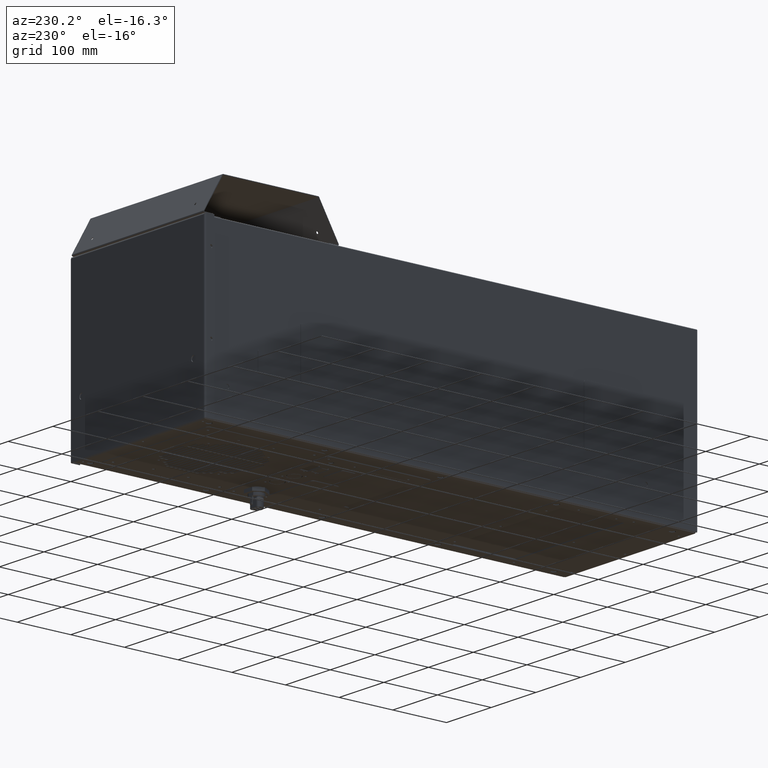
[diagram: clean part render]
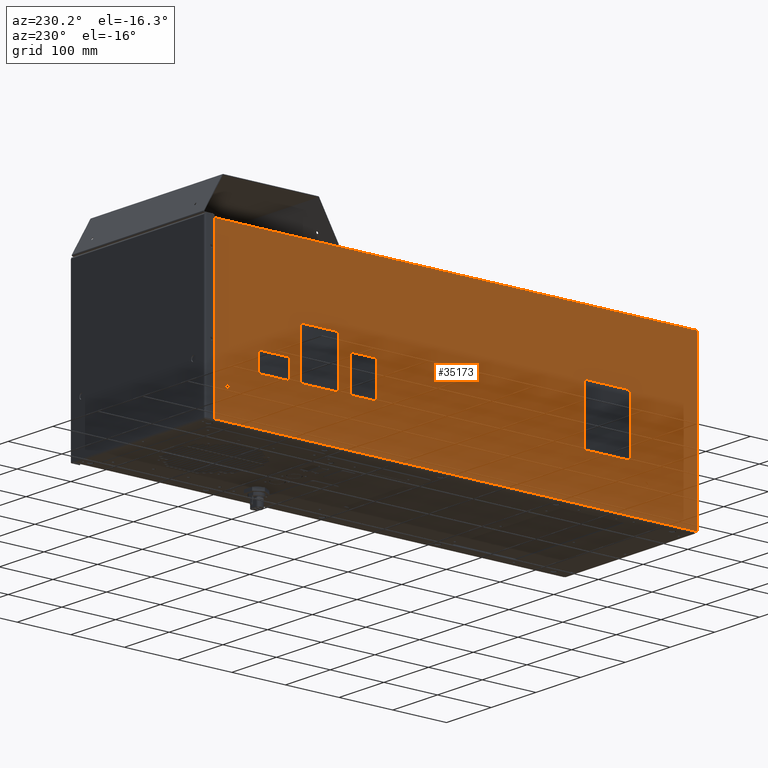
[diagram: same view with one face highlighted and labeled with its STEP entity id]
A machine part, auxiliary view. The second image highlights one B-rep face of the part: STEP entity #35173.
In plain terms, the highlighted planar face has unit normal (1, -0, -0).
Its self-contained STEP definition (entity closure, byte-faithful):
#846 = ORIENTED_EDGE ( 'NONE', *, *, #44221, .T. ) ;
#905 = DIRECTION ( 'NONE',  ( 0.000000000000000000, 1.091729334712354840E-05, 0.9999999999404063367 ) ) ;
#1135 = ORIENTED_EDGE ( 'NONE', *, *, #20481, .F. ) ;
#1191 = VERTEX_POINT ( 'NONE', #48896 ) ;
#1283 = EDGE_CURVE ( 'NONE', #38579, #62242, #36460, .T. ) ;
#1445 = EDGE_CURVE ( 'NONE', #40721, #52219, #38011, .T. ) ;
#1522 = DIRECTION ( 'NONE',  ( -1.341776734808250407E-29, 0.9999999999404064477, -1.091729334800000389E-05 ) ) ;
#1841 = LINE ( 'NONE', #25763, #17623 ) ;
#1954 = CARTESIAN_POINT ( 'NONE',  ( -5.875984251968503713, 17.37624155420484229, 5.909339826385060057 ) ) ;
#2073 = FACE_OUTER_BOUND ( 'NONE', #61629, .T. ) ;
#2214 = VECTOR ( 'NONE', #62689, 39.37007874015748143 ) ;
#2369 = CIRCLE ( 'NONE', #34964, 0.07874015748031494566 ) ;
#2562 = ORIENTED_EDGE ( 'NONE', *, *, #21139, .F. ) ;
#2566 = LINE ( 'NONE', #22328, #58836 ) ;
#2604 = DIRECTION ( 'NONE',  ( 0.000000000000000000, 1.091729335505384863E-05, 0.9999999999404064477 ) ) ;
#2942 = CARTESIAN_POINT ( 'NONE',  ( -5.875984251968503713, 16.37618841880679454, -3.827641382306020024 ) ) ;
#3503 = DIRECTION ( 'NONE',  ( -1.000000000000000000, -9.912809571418970026E-30, 1.082210499918042052E-34 ) ) ;
#3878 = CIRCLE ( 'NONE', #59927, 0.07874015748031494566 ) ;
#4077 = EDGE_CURVE ( 'NONE', #11238, #27381, #53264, .T. ) ;
#4154 = EDGE_CURVE ( 'NONE', #31732, #52991, #57587, .T. ) ;
#4505 = CARTESIAN_POINT ( 'NONE',  ( -5.875984251968503713, 11.84859787558988309, -2.563198210821720835 ) ) ;
#4659 = DIRECTION ( 'NONE',  ( 1.341776734808250407E-29, -0.9999999999404064477, 1.091729334800000389E-05 ) ) ;
#4706 = EDGE_CURVE ( 'NONE', #50708, #26687, #44435, .T. ) ;
#4708 = DIRECTION ( 'NONE',  ( 0.000000000000000000, 1.091729335505389268E-05, 0.9999999999404064477 ) ) ;
#4946 = CARTESIAN_POINT ( 'NONE',  ( -5.875984251968503713, -14.33247149233454643, -3.689510851258665625 ) ) ;
#5050 = VERTEX_POINT ( 'NONE', #60593 ) ;
#5164 = CARTESIAN_POINT ( 'NONE',  ( -5.875984251968503713, -12.97164325375132066, 1.492190869444267820 ) ) ;
#5690 = VERTEX_POINT ( 'NONE', #57851 ) ;
#5982 = CARTESIAN_POINT ( 'NONE',  ( -5.875984251968550787, 5.521212100022543368, -2.563129132960370260 ) ) ;
#6079 = EDGE_CURVE ( 'NONE', #11481, #47968, #16806, .T. ) ;
#6359 = VERTEX_POINT ( 'NONE', #7056 ) ;
#6430 = AXIS2_PLACEMENT_3D ( 'NONE', #8876, #34070, #9506 ) ;
#6549 = FACE_BOUND ( 'NONE', #28842, .T. ) ;
#6569 = AXIS2_PLACEMENT_3D ( 'NONE', #9178, #14281, #4708 ) ;
#6607 = EDGE_CURVE ( 'NONE', #28282, #5690, #18615, .T. ) ;
#7056 = CARTESIAN_POINT ( 'NONE',  ( -5.875984251968503713, 16.37618691445533514, -3.965436657888362415 ) ) ;
#7084 = CARTESIAN_POINT ( 'NONE',  ( -5.875984251968503713, 16.37618841880679454, -3.827641382306020024 ) ) ;
#7170 = FACE_BOUND ( 'NONE', #27527, .T. ) ;
#7980 = LINE ( 'NONE', #11829, #34679 ) ;
#8044 = EDGE_CURVE ( 'NONE', #25978, #22851, #13866, .T. ) ;
#8302 = VERTEX_POINT ( 'NONE', #40921 ) ;
#8373 = CARTESIAN_POINT ( 'NONE',  ( -5.875984251968503713, 11.00858410332041437, -2.563189040210240410 ) ) ;
#8396 = VECTOR ( 'NONE', #57745, 39.37007874015748143 ) ;
#8597 = CARTESIAN_POINT ( 'NONE',  ( -5.875984251968503713, 11.84859787558988309, -2.563198210821720835 ) ) ;
#8876 = CARTESIAN_POINT ( 'NONE',  ( -5.875984251968550787, 10.92984394584478380, -2.563188180580842079 ) ) ;
#8969 = EDGE_CURVE ( 'NONE', #45602, #55176, #52077, .T. ) ;
#8999 = DIRECTION ( 'NONE',  ( -1.341776734808250407E-29, 0.9999999999404064477, -1.091729334800000389E-05 ) ) ;
#9178 = CARTESIAN_POINT ( 'NONE',  ( -5.875984251968503713, -14.33247299668600405, -3.827306126841004019 ) ) ;
#9506 = DIRECTION ( 'NONE',  ( 0.000000000000000000, -1.091729334712358567E-05, -0.9999999999404063367 ) ) ;
#9843 = DIRECTION ( 'NONE',  ( 0.000000000000000000, 1.091729334712358567E-05, 0.9999999999404063367 ) ) ;
#10009 = VECTOR ( 'NONE', #40531, 39.37007874015748143 ) ;
#10315 = DIRECTION ( 'NONE',  ( 0.000000000000000000, -1.091729334712358567E-05, -0.9999999999404063367 ) ) ;
#10539 = CARTESIAN_POINT ( 'NONE',  ( -5.875984251968503713, -9.979517269677657509, 1.492158203527163440 ) ) ;
#11135 = EDGE_CURVE ( 'NONE', #56935, #8302, #18461, .T. ) ;
#11217 = CARTESIAN_POINT ( 'NONE',  ( -5.875984251968503713, -14.33247450103744036, -3.965101402423345966 ) ) ;
#11238 = VERTEX_POINT ( 'NONE', #4946 ) ;
#11321 = FACE_BOUND ( 'NONE', #52156, .T. ) ;
#11338 = DIRECTION ( 'NONE',  ( 9.999999999999754258E-16, 0.9999999999404064477, -1.091729334400000430E-05 ) ) ;
#11481 = VERTEX_POINT ( 'NONE', #61868 ) ;
#11720 = EDGE_LOOP ( 'NONE', ( #33265, #38617 ) ) ;
#11827 = EDGE_CURVE ( 'NONE', #12172, #40721, #56551, .T. ) ;
#11829 = CARTESIAN_POINT ( 'NONE',  ( -5.875984251968503713, -18.09632885416606385, -5.949036689392244170 ) ) ;
#11953 = PLANE ( 'NONE',  #58436 ) ;
#11961 = ORIENTED_EDGE ( 'NONE', *, *, #11135, .F. ) ;
#12172 = VERTEX_POINT ( 'NONE', #25751 ) ;
#12203 = ORIENTED_EDGE ( 'NONE', *, *, #47808, .F. ) ;
#12264 = DIRECTION ( 'NONE',  ( -3.491469273482965304E-15, 0.000000000000000000, -1.000000000000000000 ) ) ;
#12265 = EDGE_LOOP ( 'NONE', ( #13740, #1135, #21568, #44689, #37765, #25754, #58540, #58934 ) ) ;
#12326 = CARTESIAN_POINT ( 'NONE',  ( -5.875984251968503713, 7.332235721961870567, -2.563148904436511888 ) ) ;
#13147 = LINE ( 'NONE', #61280, #44562 ) ;
#13172 = ORIENTED_EDGE ( 'NONE', *, *, #17903, .F. ) ;
#13319 = ORIENTED_EDGE ( 'NONE', *, *, #56834, .F. ) ;
#13417 = ORIENTED_EDGE ( 'NONE', *, *, #4154, .F. ) ;
#13740 = ORIENTED_EDGE ( 'NONE', *, *, #55760, .F. ) ;
#13866 = LINE ( 'NONE', #33633, #60152 ) ;
#13889 = CARTESIAN_POINT ( 'NONE',  ( -5.875984251968503713, -9.979519418751161552, 1.295307809838108337 ) ) ;
#14109 = CARTESIAN_POINT ( 'NONE',  ( -5.875984251968550787, -9.782709857458485203, -2.444851819327456433 ) ) ;
#14138 = ORIENTED_EDGE ( 'NONE', *, *, #42916, .T. ) ;
#14253 = DIRECTION ( 'NONE',  ( 0.000000000000000000, -1.091729334712354840E-05, -0.9999999999404063367 ) ) ;
#14281 = DIRECTION ( 'NONE',  ( -1.000000000000000000, -3.275188005545924834E-20, 3.575618825162955162E-25 ) ) ;
#14303 = VERTEX_POINT ( 'NONE', #29981 ) ;
#14555 = DIRECTION ( 'NONE',  ( -1.000000000000000000, -3.275188005545924834E-20, 3.575618825162955162E-25 ) ) ;
#14795 = ORIENTED_EDGE ( 'NONE', *, *, #31988, .F. ) ;
#15004 = DIRECTION ( 'NONE',  ( -1.000000000000000000, 9.999999999403799426E-16, -1.091729334712330157E-20 ) ) ;
#15226 = EDGE_CURVE ( 'NONE', #45019, #6359, #31713, .T. ) ;
#15378 = ORIENTED_EDGE ( 'NONE', *, *, #60689, .F. ) ;
#15449 = DIRECTION ( 'NONE',  ( 1.000000000000000000, 9.912821608481119643E-30, -1.082211814039427982E-34 ) ) ;
#15876 = DIRECTION ( 'NONE',  ( 1.000000000000000000, 9.912947997633720056E-30, -1.082225612313979920E-34 ) ) ;
#16086 = CIRCLE ( 'NONE', #59848, 0.07874015748031491790 ) ;
#16089 = EDGE_CURVE ( 'NONE', #8302, #26046, #62861, .T. ) ;
#16192 = VERTEX_POINT ( 'NONE', #30660 ) ;
#16302 = CARTESIAN_POINT ( 'NONE',  ( -5.875984251968503713, 8.331455713213326675, 0.8226669586410453316 ) ) ;
#16447 = DIRECTION ( 'NONE',  ( 3.999045851678141563E-15, 1.091729334800000389E-05, 0.9999999999404064477 ) ) ;
#16806 = CIRCLE ( 'NONE', #24942, 0.07874015748031494566 ) ;
#16894 = DIRECTION ( 'NONE',  ( -1.000000000000000000, 9.999999999403799426E-16, -1.091729334712330157E-20 ) ) ;
#17171 = CARTESIAN_POINT ( 'NONE',  ( -5.875984251968503713, 14.13206244238293507, -2.563223140074240014 ) ) ;
#17623 = VECTOR ( 'NONE', #1522, 39.37007874015748143 ) ;
#17635 = VERTEX_POINT ( 'NONE', #20389 ) ;
#17895 = AXIS2_PLACEMENT_3D ( 'NONE', #27089, #16894, #31558 ) ;
#17903 = EDGE_CURVE ( 'NONE', #26046, #54696, #39338, .T. ) ;
#18461 = CIRCLE ( 'NONE', #54075, 0.1968503937007872462 ) ;
#18615 = CIRCLE ( 'NONE', #60330, 0.1968503937007872462 ) ;
#18640 = CARTESIAN_POINT ( 'NONE',  ( -5.875984251968503713, -12.97164540282480516, 1.295340475755212495 ) ) ;
#18666 = AXIS2_PLACEMENT_3D ( 'NONE', #33390, #14555, #63004 ) ;
#18822 = DIRECTION ( 'NONE',  ( -5.551115123125787435E-15, -1.091729334712355687E-05, -0.9999999999404063367 ) ) ;
#18890 = CARTESIAN_POINT ( 'NONE',  ( -5.875984251968503713, 8.331456572842716568, 0.9014071161166673507 ) ) ;
#19153 = EDGE_CURVE ( 'NONE', #27381, #11238, #34071, .T. ) ;
#19357 = DIRECTION ( 'NONE',  ( 1.000000000000000000, 9.912809571418970026E-30, -1.082210499918042052E-34 ) ) ;
#20040 = CARTESIAN_POINT ( 'NONE',  ( -5.875984251968503713, 8.252715555737696107, 0.8226678182704428854 ) ) ;
#20389 = CARTESIAN_POINT ( 'NONE',  ( -5.875984251968503713, 8.331456572842716568, 0.9014071161166673507 ) ) ;
#20481 = EDGE_CURVE ( 'NONE', #47968, #31270, #58532, .T. ) ;
#20564 = AXIS2_PLACEMENT_3D ( 'NONE', #61838, #3503, #38261 ) ;
#20908 = ORIENTED_EDGE ( 'NONE', *, *, #38230, .F. ) ;
#21081 = CARTESIAN_POINT ( 'NONE',  ( -5.875984251968550787, 8.252678591673621611, -2.563158953181326805 ) ) ;
#21139 = EDGE_CURVE ( 'NONE', #6359, #45019, #33844, .T. ) ;
#21200 = EDGE_CURVE ( 'NONE', #45173, #34353, #33225, .T. ) ;
#21529 = FACE_BOUND ( 'NONE', #42689, .T. ) ;
#21568 = ORIENTED_EDGE ( 'NONE', *, *, #6079, .F. ) ;
#21685 = CIRCLE ( 'NONE', #26791, 0.07874015748031494566 ) ;
#21788 = CARTESIAN_POINT ( 'NONE',  ( -5.875984251968503713, -18.09619938856315002, 5.909727089428622904 ) ) ;
#21869 = CARTESIAN_POINT ( 'NONE',  ( -5.875984251968558780, 10.92984308621537615, -2.641928338056464654 ) ) ;
#22207 = CARTESIAN_POINT ( 'NONE',  ( -5.875984251968558780, -9.979562400221023921, -2.641700063943019483 ) ) ;
#22328 = CARTESIAN_POINT ( 'NONE',  ( -5.875984251968503713, 11.92733717343610245, -2.641939227926740408 ) ) ;
#22629 = EDGE_CURVE ( 'NONE', #35243, #62242, #7980, .T. ) ;
#22694 = VECTOR ( 'NONE', #4659, 39.37007874015748143 ) ;
#22851 = VERTEX_POINT ( 'NONE', #57995 ) ;
#23139 = DIRECTION ( 'NONE',  ( -1.000000000000000000, 6.060315219290530207E-20, 5.551115122794980192E-15 ) ) ;
#23451 = DIRECTION ( 'NONE',  ( 5.551115123125787435E-15, 1.091729334712355687E-05, 0.9999999999404063367 ) ) ;
#23522 = ORIENTED_EDGE ( 'NONE', *, *, #4706, .F. ) ;
#23582 = DIRECTION ( 'NONE',  ( -1.000000000000000000, 6.060315219290530207E-20, 5.551115122794980192E-15 ) ) ;
#23806 = VECTOR ( 'NONE', #55394, 39.37007874015748143 ) ;
#24264 = CARTESIAN_POINT ( 'NONE',  ( -5.875984251968558780, -12.97168838429468352, -2.641667398025913549 ) ) ;
#24287 = ORIENTED_EDGE ( 'NONE', *, *, #44499, .F. ) ;
#24612 = EDGE_CURVE ( 'NONE', #1191, #38579, #26228, .T. ) ;
#24690 = ORIENTED_EDGE ( 'NONE', *, *, #27785, .F. ) ;
#24838 = CIRCLE ( 'NONE', #41144, 0.1968503937007872462 ) ;
#24942 = AXIS2_PLACEMENT_3D ( 'NONE', #34184, #33563, #47891 ) ;
#25318 = DIRECTION ( 'NONE',  ( -3.999045851678141563E-15, -1.091729334800000389E-05, -0.9999999999404064477 ) ) ;
#25751 = CARTESIAN_POINT ( 'NONE',  ( -5.875984251968503713, 11.92733717343610245, -2.641939227926740408 ) ) ;
#25754 = ORIENTED_EDGE ( 'NONE', *, *, #1445, .F. ) ;
#25763 = CARTESIAN_POINT ( 'NONE',  ( -5.875984251968503713, 5.442498591058243740, -0.1221833915866732262 ) ) ;
#25771 = CARTESIAN_POINT ( 'NONE',  ( -5.875984251968503713, -12.97164325375132066, 1.492190869444267820 ) ) ;
#25972 = CARTESIAN_POINT ( 'NONE',  ( -5.875984251968503713, 7.253521353368169500, -0.2009433205384377752 ) ) ;
#25978 = VERTEX_POINT ( 'NONE', #47307 ) ;
#26046 = VERTEX_POINT ( 'NONE', #58112 ) ;
#26228 = LINE ( 'NONE', #55528, #49620 ) ;
#26279 = VERTEX_POINT ( 'NONE', #46831 ) ;
#26451 = EDGE_CURVE ( 'NONE', #29738, #31732, #33984, .T. ) ;
#26520 = VECTOR ( 'NONE', #50467, 39.37007874015748143 ) ;
#26687 = VERTEX_POINT ( 'NONE', #12326 ) ;
#26791 = AXIS2_PLACEMENT_3D ( 'NONE', #34346, #19357, #14253 ) ;
#26842 = ORIENTED_EDGE ( 'NONE', *, *, #24612, .F. ) ;
#27089 = CARTESIAN_POINT ( 'NONE',  ( -5.875984251968503713, 11.92733803306549412, -2.563199070451117834 ) ) ;
#27262 = CARTESIAN_POINT ( 'NONE',  ( -5.875984251968503713, -18.09632885416606385, -5.949036689392244170 ) ) ;
#27381 = VERTEX_POINT ( 'NONE', #11217 ) ;
#27442 = DIRECTION ( 'NONE',  ( 3.491469273333476951E-15, 1.091729334800000389E-05, 0.9999999999404064477 ) ) ;
#27527 = EDGE_LOOP ( 'NONE', ( #52938, #2562 ) ) ;
#27785 = EDGE_CURVE ( 'NONE', #52991, #48541, #28818, .T. ) ;
#27822 = ORIENTED_EDGE ( 'NONE', *, *, #43655, .F. ) ;
#28065 = EDGE_CURVE ( 'NONE', #16192, #11481, #59161, .T. ) ;
#28259 = ORIENTED_EDGE ( 'NONE', *, *, #26451, .F. ) ;
#28282 = VERTEX_POINT ( 'NONE', #50546 ) ;
#28416 = DIRECTION ( 'NONE',  ( 0.000000000000000000, -1.091729334712358567E-05, -0.9999999999404063367 ) ) ;
#28732 = VECTOR ( 'NONE', #33560, 39.37007874015748143 ) ;
#28818 = CIRCLE ( 'NONE', #57338, 0.07874015748031468198 ) ;
#28842 = EDGE_LOOP ( 'NONE', ( #14795, #46432, #20908, #46054, #24287, #24690, #13417, #28259 ) ) ;
#29243 = EDGE_CURVE ( 'NONE', #14303, #22851, #21685, .T. ) ;
#29738 = VERTEX_POINT ( 'NONE', #8373 ) ;
#29981 = CARTESIAN_POINT ( 'NONE',  ( -5.875984251968503713, 5.521238748533866314, -0.1221842512160702804 ) ) ;
#30219 = CIRCLE ( 'NONE', #59695, 0.07874015748031468198 ) ;
#30240 = LINE ( 'NONE', #25771, #23806 ) ;
#30245 = DIRECTION ( 'NONE',  ( -1.000000000000000000, 9.999999999403799426E-16, -1.091729334712326094E-20 ) ) ;
#30278 = AXIS2_PLACEMENT_3D ( 'NONE', #34252, #53985, #10315 ) ;
#30385 = DIRECTION ( 'NONE',  ( -9.541485006438173917E-19, 1.091729334795450467E-05, 0.9999999999404064477 ) ) ;
#30429 = DIRECTION ( 'NONE',  ( -3.999045851678141563E-15, -1.091729334800000389E-05, -0.9999999999404064477 ) ) ;
#30460 = VECTOR ( 'NONE', #8999, 39.37007874015748143 ) ;
#30497 = CARTESIAN_POINT ( 'NONE',  ( -5.875984251968503713, 11.92735221695055081, -1.263986472103346470 ) ) ;
#30660 = CARTESIAN_POINT ( 'NONE',  ( -5.875984251968503713, 11.92735221695055081, -1.263986472103346470 ) ) ;
#30772 = ORIENTED_EDGE ( 'NONE', *, *, #44009, .T. ) ;
#31270 = VERTEX_POINT ( 'NONE', #17171 ) ;
#31558 = DIRECTION ( 'NONE',  ( 0.000000000000000000, 1.091729334712358567E-05, 0.9999999999404063367 ) ) ;
#31713 = CIRCLE ( 'NONE', #54115, 0.1377952755905494375 ) ;
#31732 = VERTEX_POINT ( 'NONE', #21869 ) ;
#31924 = VECTOR ( 'NONE', #11338, 39.37007874015748143 ) ;
#31988 = EDGE_CURVE ( 'NONE', #55176, #29738, #40296, .T. ) ;
#31992 = DIRECTION ( 'NONE',  ( 3.275188005741776261E-20, -0.9999999999404064477, 1.091729334800000389E-05 ) ) ;
#32267 = ORIENTED_EDGE ( 'NONE', *, *, #56302, .T. ) ;
#32535 = DIRECTION ( 'NONE',  ( 0.000000000000000000, 1.091729334712354840E-05, 0.9999999999404063367 ) ) ;
#33225 = LINE ( 'NONE', #43726, #8396 ) ;
#33265 = ORIENTED_EDGE ( 'NONE', *, *, #4077, .F. ) ;
#33390 = CARTESIAN_POINT ( 'NONE',  ( -5.875984251968503713, -14.33247299668600405, -3.827306126841004019 ) ) ;
#33560 = DIRECTION ( 'NONE',  ( -3.999045851678141563E-15, -1.091729334800000389E-05, -0.9999999999404064477 ) ) ;
#33563 = DIRECTION ( 'NONE',  ( -1.000000000000000000, 9.999999999403799426E-16, -1.091729334712326094E-20 ) ) ;
#33633 = CARTESIAN_POINT ( 'NONE',  ( -5.875984251968558780, 5.442471082917520242, -2.641868430806594503 ) ) ;
#33844 = CIRCLE ( 'NONE', #52159, 0.1377952755905494375 ) ;
#33862 = CARTESIAN_POINT ( 'NONE',  ( -5.875984251968503713, 7.332261510843779639, -0.2009441801678350514 ) ) ;
#33940 = CARTESIAN_POINT ( 'NONE',  ( -5.875984251968503713, 14.13207576663858234, -1.342750699202088782 ) ) ;
#33984 = CIRCLE ( 'NONE', #6430, 0.07874015748031468198 ) ;
#34024 = CARTESIAN_POINT ( 'NONE',  ( -5.875984251968550787, 8.252678591673621611, -2.563158953181326805 ) ) ;
#34070 = DIRECTION ( 'NONE',  ( -1.000000000000000000, -9.912947997633720056E-30, 1.082225612313979920E-34 ) ) ;
#34071 = CIRCLE ( 'NONE', #6569, 0.1377952755905488824 ) ;
#34184 = CARTESIAN_POINT ( 'NONE',  ( -5.875984251968503713, 14.05333560916295355, -1.342749839572691117 ) ) ;
#34252 = CARTESIAN_POINT ( 'NONE',  ( -5.875984251968550787, 7.253495564486240887, -2.563148044807114445 ) ) ;
#34346 = CARTESIAN_POINT ( 'NONE',  ( -5.875984251968503713, 5.521237888904464874, -0.2009244086916929239 ) ) ;
#34353 = VERTEX_POINT ( 'NONE', #53399 ) ;
#34549 = ORIENTED_EDGE ( 'NONE', *, *, #16089, .F. ) ;
#34679 = VECTOR ( 'NONE', #27442, 39.37007874015748143 ) ;
#34964 = AXIS2_PLACEMENT_3D ( 'NONE', #49984, #30245, #905 ) ;
#35173 = ADVANCED_FACE ( 'NONE', ( #2073, #21529, #6549, #7170, #41299, #54992, #11321 ), #11953, .F. ) ;
#35243 = VERTEX_POINT ( 'NONE', #51161 ) ;
#35541 = CARTESIAN_POINT ( 'NONE',  ( -5.875984251968503713, 11.84861119984553213, -1.342725769949570935 ) ) ;
#35887 = DIRECTION ( 'NONE',  ( 1.000000000000000000, -5.365514217043970493E-21, -3.491469273482965304E-15 ) ) ;
#35977 = EDGE_CURVE ( 'NONE', #52219, #16192, #2369, .T. ) ;
#36460 = LINE ( 'NONE', #21788, #26520 ) ;
#36692 = DIRECTION ( 'NONE',  ( -9.999999999999754258E-16, -0.9999999999404064477, 1.091729334400000430E-05 ) ) ;
#37765 = ORIENTED_EDGE ( 'NONE', *, *, #35977, .F. ) ;
#38011 = LINE ( 'NONE', #4505, #62112 ) ;
#38230 = EDGE_CURVE ( 'NONE', #17635, #45602, #57450, .T. ) ;
#38261 = DIRECTION ( 'NONE',  ( 0.000000000000000000, -1.091729334712354840E-05, -0.9999999999404063367 ) ) ;
#38579 = VERTEX_POINT ( 'NONE', #1954 ) ;
#38617 = ORIENTED_EDGE ( 'NONE', *, *, #19153, .F. ) ;
#38869 = VECTOR ( 'NONE', #48801, 39.37007874015748143 ) ;
#39236 = CARTESIAN_POINT ( 'NONE',  ( -5.875984251968503713, 14.05332228490730451, -2.563222280444842571 ) ) ;
#39338 = CIRCLE ( 'NONE', #48479, 0.1968503937007872462 ) ;
#39652 = VERTEX_POINT ( 'NONE', #20040 ) ;
#40296 = LINE ( 'NONE', #59727, #52696 ) ;
#40531 = DIRECTION ( 'NONE',  ( 3.999045851678141563E-15, 1.091729334800000389E-05, 0.9999999999404064477 ) ) ;
#40721 = VERTEX_POINT ( 'NONE', #8597 ) ;
#40921 = CARTESIAN_POINT ( 'NONE',  ( -5.875984251968503713, -9.782669025062087798, 1.295305660764614286 ) ) ;
#40994 = CARTESIAN_POINT ( 'NONE',  ( -5.875984251968550787, -13.16853662891023724, -2.444814855263366393 ) ) ;
#41124 = ORIENTED_EDGE ( 'NONE', *, *, #59544, .F. ) ;
#41144 = AXIS2_PLACEMENT_3D ( 'NONE', #18640, #62611, #46996 ) ;
#41299 = FACE_BOUND ( 'NONE', #11720, .T. ) ;
#42056 = CARTESIAN_POINT ( 'NONE',  ( -5.875984251968503713, 14.05332142527791461, -2.641962437920465145 ) ) ;
#42667 = CARTESIAN_POINT ( 'NONE',  ( -5.875984251968550787, -9.979560251147539418, -2.444849670253964380 ) ) ;
#42689 = EDGE_LOOP ( 'NONE', ( #23522, #14138, #41124, #49662, #52468, #32267, #47604, #30772 ) ) ;
#42723 = CARTESIAN_POINT ( 'NONE',  ( -5.875984251968550787, -12.97168623522118125, -2.444817004336858446 ) ) ;
#42916 = EDGE_CURVE ( 'NONE', #50708, #26279, #16086, .T. ) ;
#43409 = DIRECTION ( 'NONE',  ( 9.990458516781393573E-16, 1.091729334400000430E-05, 0.9999999999404064477 ) ) ;
#43655 = EDGE_CURVE ( 'NONE', #5690, #5050, #45451, .T. ) ;
#43726 = CARTESIAN_POINT ( 'NONE',  ( -5.875984251968558780, 5.442471082917520242, -2.641868430806594503 ) ) ;
#44009 = EDGE_CURVE ( 'NONE', #45173, #26687, #44509, .T. ) ;
#44221 = EDGE_CURVE ( 'NONE', #1191, #35243, #13147, .T. ) ;
#44235 = CARTESIAN_POINT ( 'NONE',  ( -5.875984251968558780, 8.331417889519842745, -2.641899970286346822 ) ) ;
#44435 = LINE ( 'NONE', #49532, #45195 ) ;
#44499 = EDGE_CURVE ( 'NONE', #48541, #39652, #59646, .T. ) ;
#44509 = CIRCLE ( 'NONE', #30278, 0.07874015748031468198 ) ;
#44562 = VECTOR ( 'NONE', #31992, 39.37007874015748143 ) ;
#44675 = EDGE_CURVE ( 'NONE', #56046, #12172, #2566, .T. ) ;
#44689 = ORIENTED_EDGE ( 'NONE', *, *, #28065, .F. ) ;
#45019 = VERTEX_POINT ( 'NONE', #45235 ) ;
#45173 = VERTEX_POINT ( 'NONE', #52506 ) ;
#45195 = VECTOR ( 'NONE', #25318, 39.37007874015748143 ) ;
#45235 = CARTESIAN_POINT ( 'NONE',  ( -5.875984251968503713, 16.37618992315822908, -3.689846106723681185 ) ) ;
#45263 = ORIENTED_EDGE ( 'NONE', *, *, #6607, .F. ) ;
#45451 = LINE ( 'NONE', #40994, #49749 ) ;
#45602 = VERTEX_POINT ( 'NONE', #49159 ) ;
#45674 = DIRECTION ( 'NONE',  ( -1.000000000000000000, -3.275188005545924834E-20, 3.575618825162945520E-25 ) ) ;
#45996 = DIRECTION ( 'NONE',  ( -1.000000000000000000, -3.275188005545924834E-20, 3.575618825162945520E-25 ) ) ;
#46054 = ORIENTED_EDGE ( 'NONE', *, *, #51113, .F. ) ;
#46432 = ORIENTED_EDGE ( 'NONE', *, *, #8969, .F. ) ;
#46831 = CARTESIAN_POINT ( 'NONE',  ( -5.875984251968503713, 7.253522212997559393, -0.1222031630628155618 ) ) ;
#46996 = DIRECTION ( 'NONE',  ( 5.551115123125787435E-15, 1.091729334712355687E-05, 0.9999999999404063367 ) ) ;
#47307 = CARTESIAN_POINT ( 'NONE',  ( -5.875984251968503713, 5.442471942546921682, -2.563128273330972373 ) ) ;
#47542 = ORIENTED_EDGE ( 'NONE', *, *, #22629, .T. ) ;
#47604 = ORIENTED_EDGE ( 'NONE', *, *, #21200, .F. ) ;
#47762 = DIRECTION ( 'NONE',  ( 5.551115123125787435E-15, 1.091729334712355687E-05, 0.9999999999404063367 ) ) ;
#47808 = EDGE_CURVE ( 'NONE', #5050, #62879, #24838, .T. ) ;
#47891 = DIRECTION ( 'NONE',  ( 0.000000000000000000, 1.091729334712354840E-05, 0.9999999999404063367 ) ) ;
#47968 = VERTEX_POINT ( 'NONE', #33940 ) ;
#48479 = AXIS2_PLACEMENT_3D ( 'NONE', #42667, #62096, #47762 ) ;
#48541 = VERTEX_POINT ( 'NONE', #34024 ) ;
#48801 = DIRECTION ( 'NONE',  ( 1.341776734808250407E-29, -0.9999999999404064477, 1.091729334800000389E-05 ) ) ;
#48896 = CARTESIAN_POINT ( 'NONE',  ( -5.875984251968503713, 17.37611260171470562, -5.902423952438598853 ) ) ;
#49159 = CARTESIAN_POINT ( 'NONE',  ( -5.875984251968503713, 10.92988176953826773, 0.9013787483465512951 ) ) ;
#49532 = CARTESIAN_POINT ( 'NONE',  ( -5.875984251968558780, 7.332234862332460246, -2.641889061912134018 ) ) ;
#49620 = VECTOR ( 'NONE', #30385, 39.37007874015748143 ) ;
#49662 = ORIENTED_EDGE ( 'NONE', *, *, #29243, .T. ) ;
#49749 = VECTOR ( 'NONE', #16447, 39.37007874015748143 ) ;
#49984 = CARTESIAN_POINT ( 'NONE',  ( -5.875984251968503713, 11.92735135732116269, -1.342726629578968600 ) ) ;
#50179 = DIRECTION ( 'NONE',  ( 0.000000000000000000, -1.091729334712355349E-05, -0.9999999999404063367 ) ) ;
#50290 = DIRECTION ( 'NONE',  ( 0.000000000000000000, -1.091729334712358567E-05, -0.9999999999404063367 ) ) ;
#50467 = DIRECTION ( 'NONE',  ( 3.275188005741776261E-20, -0.9999999999404064477, 1.091729334800000389E-05 ) ) ;
#50546 = CARTESIAN_POINT ( 'NONE',  ( -5.875984251968503713, -12.97168838429468352, -2.641667398025913549 ) ) ;
#50708 = VERTEX_POINT ( 'NONE', #33862 ) ;
#51113 = EDGE_CURVE ( 'NONE', #39652, #17635, #3878, .T. ) ;
#51161 = CARTESIAN_POINT ( 'NONE',  ( -5.875984251968503713, -18.09632834105326893, -5.902036689395039559 ) ) ;
#51292 = ORIENTED_EDGE ( 'NONE', *, *, #1283, .F. ) ;
#51453 = CARTESIAN_POINT ( 'NONE',  ( -5.875984251968503713, 11.00862106738448709, 0.8226377312415316112 ) ) ;
#52077 = CIRCLE ( 'NONE', #20564, 0.07874015748031494566 ) ;
#52156 = EDGE_LOOP ( 'NONE', ( #12203, #27822, #45263, #13319, #13172, #34549, #11961, #15378 ) ) ;
#52159 = AXIS2_PLACEMENT_3D ( 'NONE', #2942, #45996, #55556 ) ;
#52219 = VERTEX_POINT ( 'NONE', #35541 ) ;
#52468 = ORIENTED_EDGE ( 'NONE', *, *, #8044, .F. ) ;
#52506 = CARTESIAN_POINT ( 'NONE',  ( -5.875984251968503713, 7.253494704856850994, -2.641888202282736575 ) ) ;
#52696 = VECTOR ( 'NONE', #30429, 39.37007874015748143 ) ;
#52806 = CARTESIAN_POINT ( 'NONE',  ( -5.875984251968503713, 14.13206244238293507, -2.563223140074240014 ) ) ;
#52938 = ORIENTED_EDGE ( 'NONE', *, *, #15226, .F. ) ;
#52991 = VERTEX_POINT ( 'NONE', #44235 ) ;
#53057 = AXIS2_PLACEMENT_3D ( 'NONE', #5982, #15876, #50290 ) ;
#53264 = CIRCLE ( 'NONE', #18666, 0.1377952755905488824 ) ;
#53399 = CARTESIAN_POINT ( 'NONE',  ( -5.875984251968558780, 5.521211240393149033, -2.641869290435991946 ) ) ;
#53985 = DIRECTION ( 'NONE',  ( 1.000000000000000000, 9.912947997633720056E-30, -1.082225612313979920E-34 ) ) ;
#54075 = AXIS2_PLACEMENT_3D ( 'NONE', #13889, #23139, #23451 ) ;
#54115 = AXIS2_PLACEMENT_3D ( 'NONE', #7084, #45674, #2604 ) ;
#54696 = VERTEX_POINT ( 'NONE', #22207 ) ;
#54992 = FACE_BOUND ( 'NONE', #12265, .T. ) ;
#55168 = DIRECTION ( 'NONE',  ( -1.000000000000000000, -9.912809571418970026E-30, 1.082210499918042052E-34 ) ) ;
#55176 = VERTEX_POINT ( 'NONE', #51453 ) ;
#55394 = DIRECTION ( 'NONE',  ( -1.341776734808250407E-29, 0.9999999999404064477, -1.091729334800000389E-05 ) ) ;
#55528 = CARTESIAN_POINT ( 'NONE',  ( -5.875984251968503713, 17.37624277075236279, 6.020772897244468069 ) ) ;
#55556 = DIRECTION ( 'NONE',  ( 0.000000000000000000, 1.091729335505384863E-05, 0.9999999999404064477 ) ) ;
#55760 = EDGE_CURVE ( 'NONE', #31270, #56046, #30219, .T. ) ;
#56046 = VERTEX_POINT ( 'NONE', #42056 ) ;
#56302 = EDGE_CURVE ( 'NONE', #25978, #34353, #58156, .T. ) ;
#56551 = CIRCLE ( 'NONE', #17895, 0.07874015748031468198 ) ;
#56834 = EDGE_CURVE ( 'NONE', #54696, #28282, #62520, .T. ) ;
#56935 = VERTEX_POINT ( 'NONE', #10539 ) ;
#57338 = AXIS2_PLACEMENT_3D ( 'NONE', #58610, #57980, #9843 ) ;
#57450 = LINE ( 'NONE', #18890, #30460 ) ;
#57587 = LINE ( 'NONE', #62692, #22694 ) ;
#57745 = DIRECTION ( 'NONE',  ( 1.341776734808250407E-29, -0.9999999999404064477, 1.091729334800000389E-05 ) ) ;
#57851 = CARTESIAN_POINT ( 'NONE',  ( -5.875984251968550787, -13.16853662891023724, -2.444814855263366393 ) ) ;
#57980 = DIRECTION ( 'NONE',  ( -1.000000000000000000, -9.912947997633720056E-30, 1.082225612313979920E-34 ) ) ;
#57995 = CARTESIAN_POINT ( 'NONE',  ( -5.875984251968503713, 5.442497731428834307, -0.2009235490622960918 ) ) ;
#58112 = CARTESIAN_POINT ( 'NONE',  ( -5.875984251968550787, -9.782709857458485203, -2.444851819327456433 ) ) ;
#58156 = CIRCLE ( 'NONE', #53057, 0.07874015748031468198 ) ;
#58436 = AXIS2_PLACEMENT_3D ( 'NONE', #27262, #35887, #12264 ) ;
#58532 = LINE ( 'NONE', #52806, #2214 ) ;
#58540 = ORIENTED_EDGE ( 'NONE', *, *, #11827, .F. ) ;
#58610 = CARTESIAN_POINT ( 'NONE',  ( -5.875984251968550787, 8.331418749149232639, -2.563159812810724247 ) ) ;
#58836 = VECTOR ( 'NONE', #36692, 39.37007874015748143 ) ;
#58934 = ORIENTED_EDGE ( 'NONE', *, *, #44675, .F. ) ;
#59161 = LINE ( 'NONE', #30497, #31924 ) ;
#59544 = EDGE_CURVE ( 'NONE', #14303, #26279, #1841, .T. ) ;
#59646 = LINE ( 'NONE', #21081, #10009 ) ;
#59695 = AXIS2_PLACEMENT_3D ( 'NONE', #39236, #15004, #28416 ) ;
#59727 = CARTESIAN_POINT ( 'NONE',  ( -5.875984251968550787, 11.00858410332041437, -2.563189040210240410 ) ) ;
#59848 = AXIS2_PLACEMENT_3D ( 'NONE', #25972, #15449, #50179 ) ;
#59927 = AXIS2_PLACEMENT_3D ( 'NONE', #16302, #55168, #32535 ) ;
#60152 = VECTOR ( 'NONE', #62311, 39.37007874015748143 ) ;
#60330 = AXIS2_PLACEMENT_3D ( 'NONE', #42723, #23582, #18822 ) ;
#60459 = CARTESIAN_POINT ( 'NONE',  ( -5.875984251968503713, -18.09619938856315002, 5.909727089428622904 ) ) ;
#60593 = CARTESIAN_POINT ( 'NONE',  ( -5.875984251968503713, -13.16849579651386115, 1.295342624828706768 ) ) ;
#60689 = EDGE_CURVE ( 'NONE', #62879, #56935, #30240, .T. ) ;
#61280 = CARTESIAN_POINT ( 'NONE',  ( -5.875984251968503713, 17.92729370404405387, -5.902429969844385838 ) ) ;
#61629 = EDGE_LOOP ( 'NONE', ( #26842, #846, #47542, #51292 ) ) ;
#61838 = CARTESIAN_POINT ( 'NONE',  ( -5.875984251968503713, 10.92988090990887784, 0.8226385908709291650 ) ) ;
#61868 = CARTESIAN_POINT ( 'NONE',  ( -5.875984251968503713, 14.05333646879236298, -1.264009682097068765 ) ) ;
#62096 = DIRECTION ( 'NONE',  ( -1.000000000000000000, 6.060315219290530207E-20, 5.551115122794980192E-15 ) ) ;
#62112 = VECTOR ( 'NONE', #43409, 39.37007874015748143 ) ;
#62242 = VERTEX_POINT ( 'NONE', #60459 ) ;
#62311 = DIRECTION ( 'NONE',  ( 3.999045851678141563E-15, 1.091729334800000389E-05, 0.9999999999404064477 ) ) ;
#62520 = LINE ( 'NONE', #24264, #38869 ) ;
#62611 = DIRECTION ( 'NONE',  ( -1.000000000000000000, 6.060315219290530207E-20, 5.551115122794980192E-15 ) ) ;
#62689 = DIRECTION ( 'NONE',  ( -9.990458516781393573E-16, -1.091729334400000430E-05, -0.9999999999404064477 ) ) ;
#62692 = CARTESIAN_POINT ( 'NONE',  ( -5.875984251968558780, 8.331417889519842745, -2.641899970286346822 ) ) ;
#62861 = LINE ( 'NONE', #14109, #28732 ) ;
#62879 = VERTEX_POINT ( 'NONE', #5164 ) ;
#63004 = DIRECTION ( 'NONE',  ( 0.000000000000000000, 1.091729335505389268E-05, 0.9999999999404064477 ) ) ;